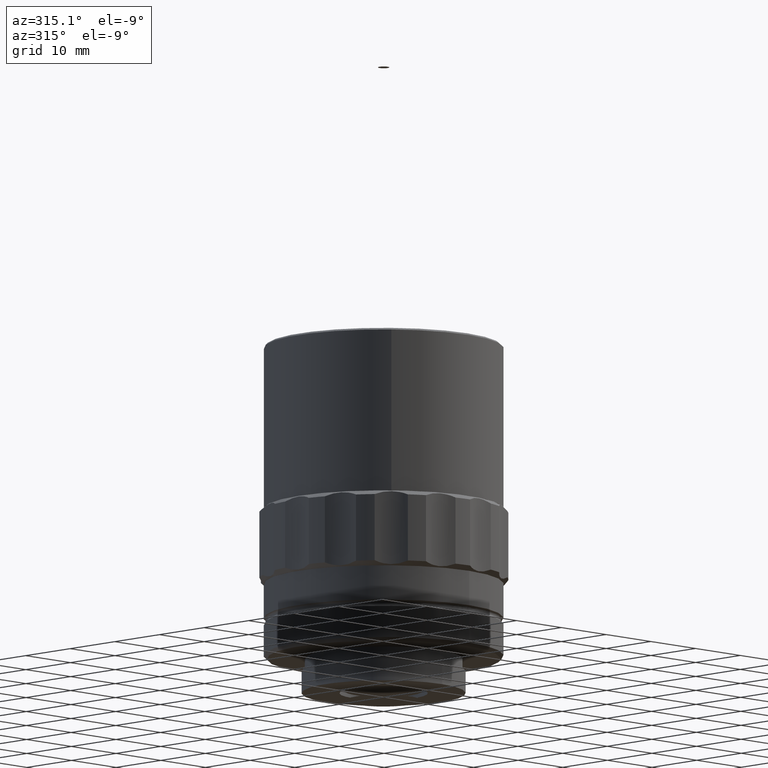
[diagram: clean part render]
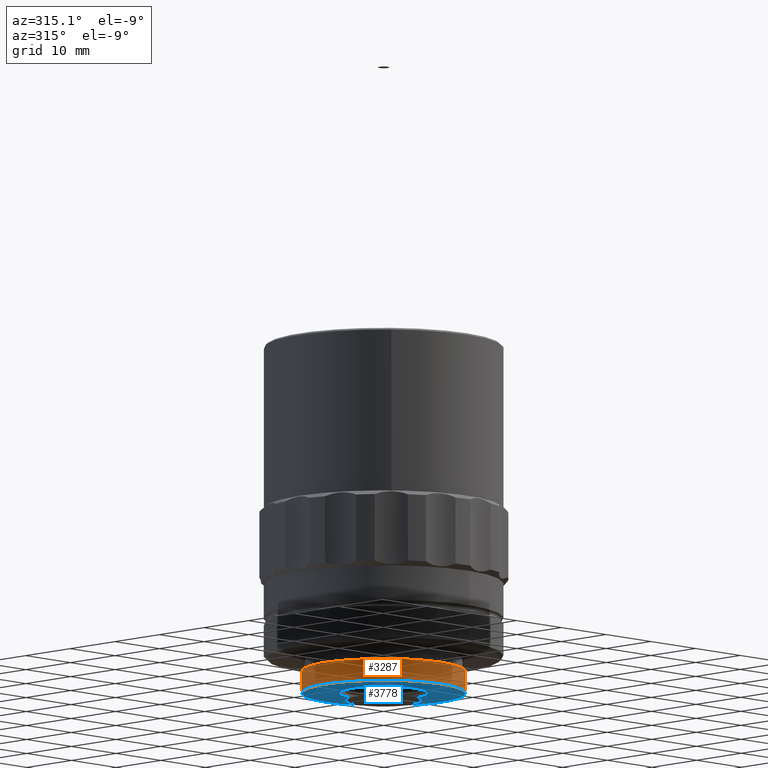
[diagram: same view with the hole feature highlighted: cylindrical wall and planar end face, labeled with their STEP entity ids]
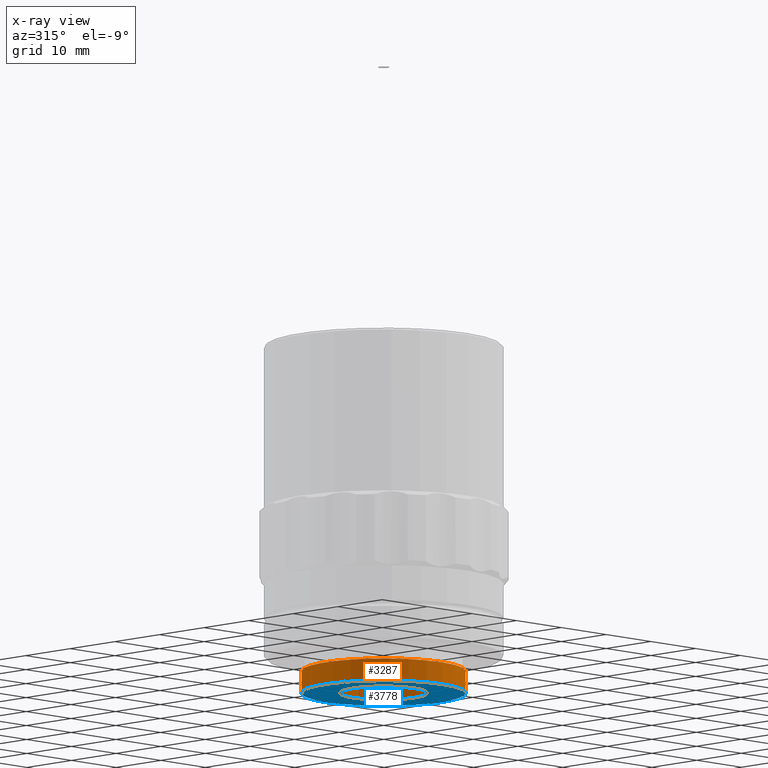
[diagram: x-ray of the same camera — body ghosted, the hole faces saturated]
A machine part, auxiliary view. The highlighted faces form one hole feature of diameter 26 mm: the cylindrical wall (entity #3287, orange) and its adjacent planar end face (entity #3778, blue) — they share a circular edge in the B-rep.
The next image is the same camera in x-ray (body ghosted, the hole faces saturated) — the bore reads through the body.
Wall:
#6 = ORIENTED_EDGE ( 'NONE', *, *, #4222, .T. ) ;
#228 = FACE_OUTER_BOUND ( 'NONE', #543, .T. ) ;
#543 = EDGE_LOOP ( 'NONE', ( #1553 ) ) ;
#568 = FACE_OUTER_BOUND ( 'NONE', #921, .T. ) ;
#921 = EDGE_LOOP ( 'NONE', ( #6 ) ) ;
#1162 = CIRCLE ( 'NONE', #3911, 13.00000000000001776 ) ;
#1210 = CARTESIAN_POINT ( 'NONE',  ( 0.1442238207399747230, -12.99919995574849452, -0.8099999999999980549 ) ) ;
#1252 = DIRECTION ( 'NONE',  ( -1.734723475976809020E-18, -1.474514954580309450E-17, -1.000000000000000000 ) ) ;
#1301 = DIRECTION ( 'NONE',  ( 0.01109414005692111078, -0.9999384581344981093, 0.000000000000000000 ) ) ;
#1553 = ORIENTED_EDGE ( 'NONE', *, *, #1686, .T. ) ;
#1646 = DIRECTION ( 'NONE',  ( -1.734723475976809020E-18, -1.474514954580309450E-17, -1.000000000000000000 ) ) ;
#1686 = EDGE_CURVE ( 'NONE', #3560, #3560, #2903, .T. ) ;
#2360 = DIRECTION ( 'NONE',  ( 0.01109414005692111078, -0.9999384581344981093, 1.668003342285389209E-17 ) ) ;
#2375 = DIRECTION ( 'NONE',  ( 0.01109414005692111078, -0.9999384581344981093, 0.000000000000000000 ) ) ;
#2734 = CARTESIAN_POINT ( 'NONE',  ( 9.843851714395151197E-17, -1.783861354563152410E-15, 2.690000000000004832 ) ) ;
#2797 = CARTESIAN_POINT ( 'NONE',  ( 9.236698497803265016E-17, -1.835469377973462816E-15, -0.8099999999999982769 ) ) ;
#2843 = AXIS2_PLACEMENT_3D ( 'NONE', #2944, #1252, #2375 ) ;
#2903 = CIRCLE ( 'NONE', #3375, 13.00000000000001776 ) ;
#2944 = CARTESIAN_POINT ( 'NONE',  ( 8.354839166315488270E-17, -1.910427421149925140E-15, -5.893572936552369690 ) ) ;
#3079 = VERTEX_POINT ( 'NONE', #3445 ) ;
#3260 = CYLINDRICAL_SURFACE ( 'NONE', #2843, 13.00000000000001776 ) ;
#3287 = ADVANCED_FACE ( 'NONE', ( #228, #568 ), #3260, .T. ) ;
#3375 = AXIS2_PLACEMENT_3D ( 'NONE', #2797, #3453, #2360 ) ;
#3445 = CARTESIAN_POINT ( 'NONE',  ( 0.1442238207399747507, -12.99919995574849452, 2.690000000000004832 ) ) ;
#3453 = DIRECTION ( 'NONE',  ( 1.734723475976809020E-18, 1.474514954580309450E-17, 1.000000000000000000 ) ) ;
#3560 = VERTEX_POINT ( 'NONE', #1210 ) ;
#3911 = AXIS2_PLACEMENT_3D ( 'NONE', #2734, #1646, #1301 ) ;
#4222 = EDGE_CURVE ( 'NONE', #3079, #3079, #1162, .T. ) ;
End face:
#30 = CARTESIAN_POINT ( 'NONE',  ( 9.236698497803265016E-17, -1.835469377973462816E-15, -0.8099999999999982769 ) ) ;
#95 = FACE_OUTER_BOUND ( 'NONE', #2884, .T. ) ;
#347 = EDGE_LOOP ( 'NONE', ( #1396 ) ) ;
#641 = EDGE_CURVE ( 'NONE', #1145, #1145, #2136, .T. ) ;
#1145 = VERTEX_POINT ( 'NONE', #2520 ) ;
#1210 = CARTESIAN_POINT ( 'NONE',  ( 0.1442238207399747230, -12.99919995574849452, -0.8099999999999980549 ) ) ;
#1396 = ORIENTED_EDGE ( 'NONE', *, *, #641, .T. ) ;
#1686 = EDGE_CURVE ( 'NONE', #3560, #3560, #2903, .T. ) ;
#1719 = DIRECTION ( 'NONE',  ( 0.01109414005692110905, -0.9999384581344979983, 1.548860246407861364E-17 ) ) ;
#1780 = ORIENTED_EDGE ( 'NONE', *, *, #1686, .F. ) ;
#2110 = DIRECTION ( 'NONE',  ( 1.734723475976809020E-18, 1.474514954580309450E-17, 1.000000000000000000 ) ) ;
#2136 = CIRCLE ( 'NONE', #4379, 7.000000000000009770 ) ;
#2151 = DIRECTION ( 'NONE',  ( 1.734723475976809020E-18, 1.474514954580309450E-17, 1.000000000000000000 ) ) ;
#2203 = PLANE ( 'NONE',  #4195 ) ;
#2360 = DIRECTION ( 'NONE',  ( 0.01109414005692111078, -0.9999384581344981093, 1.668003342285389209E-17 ) ) ;
#2520 = CARTESIAN_POINT ( 'NONE',  ( 0.07765898039844797152, -6.999569206941497868, -0.8099999999999981659 ) ) ;
#2571 = CARTESIAN_POINT ( 'NONE',  ( -6.999569206941501420, -0.07765898039844972012, -0.8099999999999982769 ) ) ;
#2797 = CARTESIAN_POINT ( 'NONE',  ( 9.236698497803265016E-17, -1.835469377973462816E-15, -0.8099999999999982769 ) ) ;
#2831 = FACE_BOUND ( 'NONE', #347, .T. ) ;
#2884 = EDGE_LOOP ( 'NONE', ( #1780 ) ) ;
#2903 = CIRCLE ( 'NONE', #3375, 13.00000000000001776 ) ;
#3375 = AXIS2_PLACEMENT_3D ( 'NONE', #2797, #3453, #2360 ) ;
#3453 = DIRECTION ( 'NONE',  ( 1.734723475976809020E-18, 1.474514954580309450E-17, 1.000000000000000000 ) ) ;
#3560 = VERTEX_POINT ( 'NONE', #1210 ) ;
#3778 = ADVANCED_FACE ( 'NONE', ( #95, #2831 ), #2203, .F. ) ;
#3858 = DIRECTION ( 'NONE',  ( -0.01109414005692111078, 0.9999384581344981093, -1.472499683659042610E-17 ) ) ;
#4195 = AXIS2_PLACEMENT_3D ( 'NONE', #2571, #2151, #3858 ) ;
#4379 = AXIS2_PLACEMENT_3D ( 'NONE', #30, #2110, #1719 ) ;